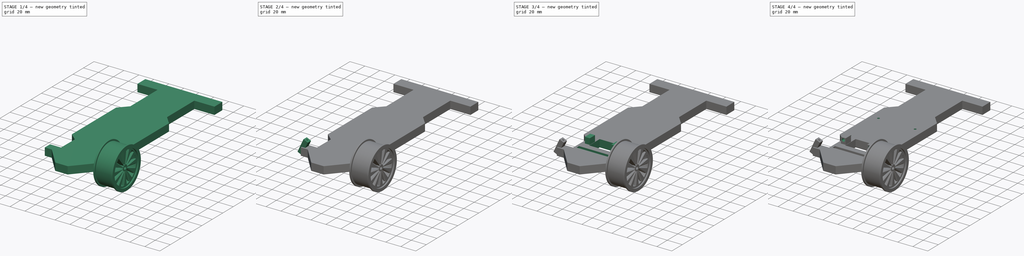
[diagram: build sequence overview — one tinted view per stage of 4, left to right]
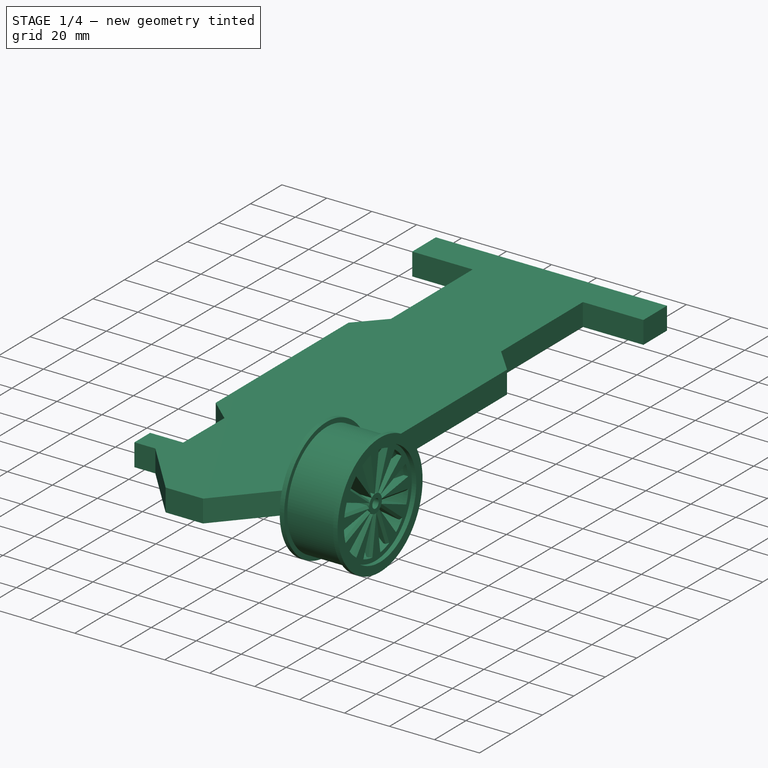
[diagram: stage 1 of 4 — iso view after this stage's code; geometry added in this stage tinted green]
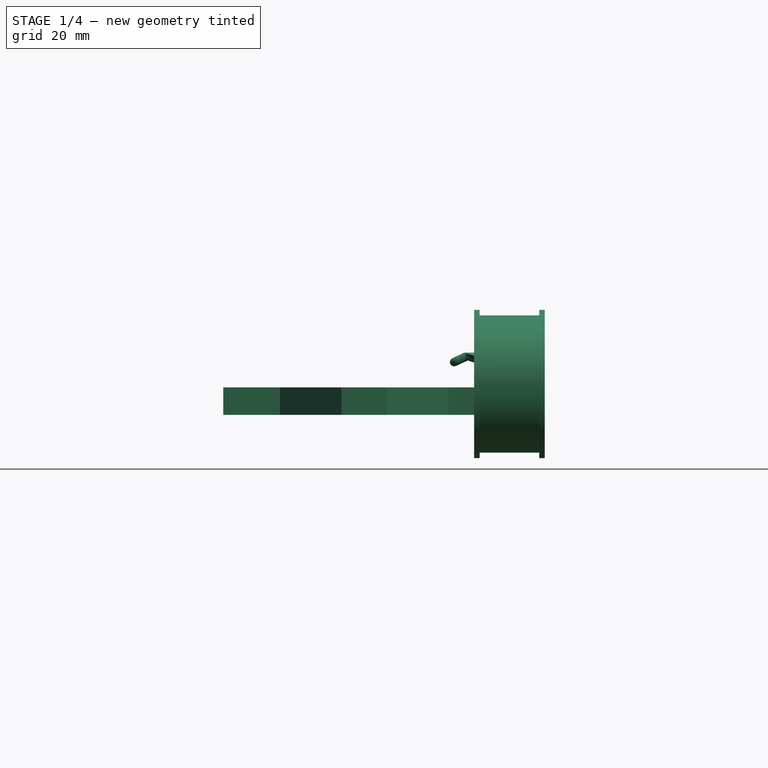
[diagram: stage 1 of 4 — front view after this stage's code; geometry added in this stage tinted green]
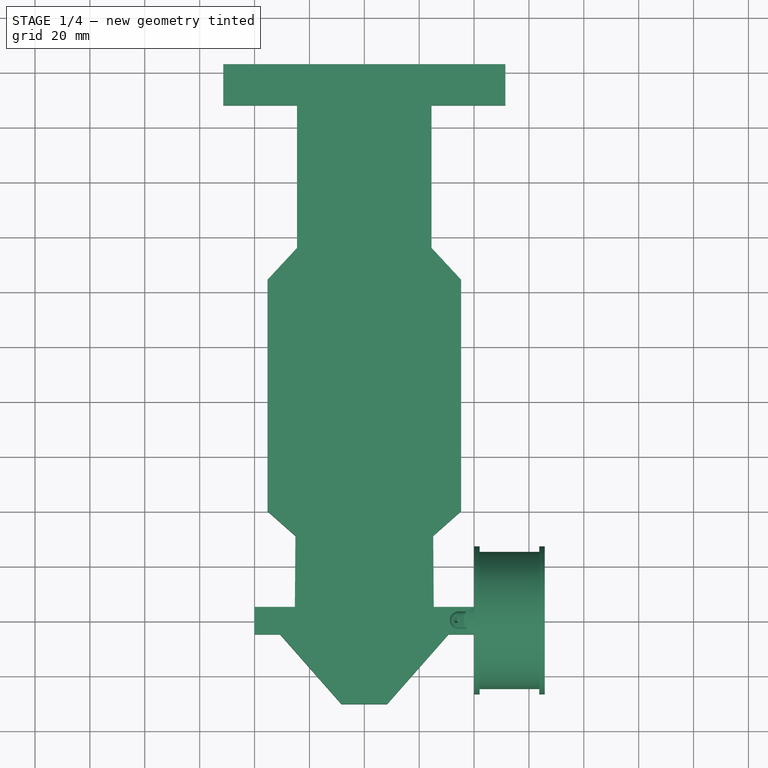
[diagram: stage 1 of 4 — top view after this stage's code; geometry added in this stage tinted green]
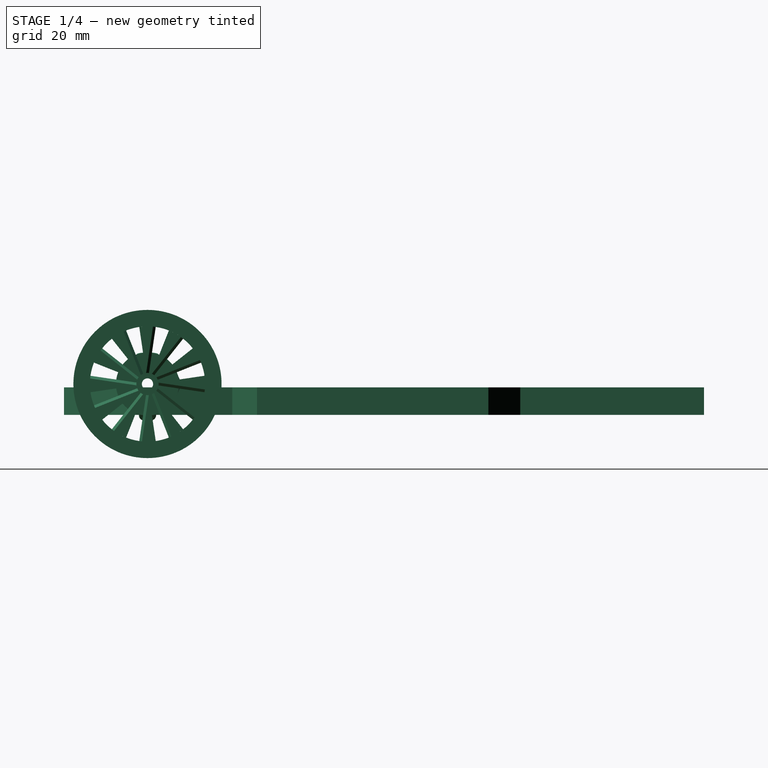
[diagram: stage 1 of 4 — right view after this stage's code; geometry added in this stage tinted green]
FCSTD DOCUMENT  (FreeCAD 1.0R39285 (Git))
Label: cat-car-body
License: All rights reserved
LicenseURL: http://en.wikipedia.org/wiki/All_rights_reserved
objects: Sketcher::SketchObject×9, PartDesign::Pocket×6, App::Link×5, PartDesign::Pad×3, App::VarSet×3, Spreadsheet::Sheet×2, PartDesign::CoordinateSystem×2, App::Part×1, PartDesign::Body×1, Part::Mirroring×1
note: 49 computed .brp shape members not serialized (recipe doc carries the construction recipe); baked Part::Feature solids carry a one-line shape summary decoded from their .brp
EXTERNAL_REF file=../steering-bracket-v2/steering-brackets-v2.FCStd obj=VarSet
EXTERNAL_REF file=../steering-bracket-v2/steering-brackets-v2.FCStd obj=Body
EXTERNAL_REF file=../wheels.FCStd obj=Part
EXTERNAL_REF file=../lib/28BYJ-48_Stepper.FCStd obj=Stepper_motor_28BYJ_48_5V
EXTERNAL_REF file=../lib/raspberry_pi_3_b.FCStd obj=Body

FEATURE [Sketcher::SketchObject] Sketch  label="FrameBaseSketch"
  ArcFitTolerance = 1e-06
  AttachmentSupport = -> [XY_Plane]
  FullyConstrained = false
  MakeInternals = false
  MapMode = 5
  expr: Constraints[22] = <<Dimensions>>.NoseWidth
  expr: Constraints[24] = <<Dimensions>>.NoseLengthX
  sketch-geometry (24):
    g0: LineSegment StartX=-40 StartY=-5 StartZ=0 EndX=-40 EndY=5 EndZ=0
    g1: LineSegment StartX=-40 StartY=5 StartZ=0 EndX=-25.3048 EndY=5 EndZ=0
    g2: LineSegment StartX=40 StartY=-5 StartZ=0 EndX=40 EndY=5 EndZ=0
    g3: LineSegment StartX=40 StartY=5 StartZ=0 EndX=25.3048 EndY=5 EndZ=0
    g4: LineSegment StartX=-25.3048 StartY=5 StartZ=0 EndX=-25.1092 EndY=30.8992 EndZ=0
    g5: LineSegment StartX=25.3048 StartY=5 StartZ=0 EndX=25.1092 EndY=30.8992 EndZ=0
    g6: LineSegment StartX=-25.1092 StartY=30.8992 StartZ=0 EndX=-35.2817 EndY=39.8988 EndZ=0
    g7: LineSegment StartX=25.1092 StartY=30.8992 StartZ=0 EndX=35.2817 EndY=39.8988 EndZ=0
    g8: LineSegment StartX=-35.2817 StartY=39.8988 StartZ=0 EndX=-35.2817 EndY=124.243 EndZ=0
    g9: LineSegment StartX=35.2817 StartY=39.8988 StartZ=0 EndX=35.2817 EndY=124.243 EndZ=0
    g10: LineSegment StartX=-35.2817 StartY=124.243 StartZ=0 EndX=-24.5062 EndY=135.839 EndZ=0
    g11: LineSegment StartX=35.2817 StartY=124.243 StartZ=0 EndX=24.5062 EndY=135.839 EndZ=0
    g12: LineSegment StartX=-24.5062 StartY=135.839 StartZ=0 EndX=-24.5062 EndY=187.812 EndZ=0
    g13: LineSegment StartX=24.5062 StartY=187.812 StartZ=0 EndX=24.5062 EndY=135.839 EndZ=0
    g14: LineSegment StartX=-40 StartY=-5 StartZ=0 EndX=-30.7049 EndY=-5 EndZ=0
    g15: LineSegment StartX=-30.7049 StartY=-5 StartZ=0 EndX=-8.31598 EndY=-30.4266 EndZ=0
    g16: LineSegment StartX=-8.31598 StartY=-30.4266 StartZ=0 EndX=8.31598 EndY=-30.4266 EndZ=0
    g17: LineSegment StartX=8.31598 StartY=-30.4266 StartZ=0 EndX=30.7049 EndY=-5 EndZ=0
    g18: LineSegment StartX=30.7049 StartY=-5 StartZ=0 EndX=40 EndY=-5 EndZ=0
    g19: LineSegment StartX=-24.5062 StartY=187.812 StartZ=0 EndX=-51.4242 EndY=187.812 EndZ=0
    g20: LineSegment StartX=-51.4242 StartY=187.812 StartZ=0 EndX=-51.4242 EndY=202.812 EndZ=0
    g21: LineSegment StartX=-51.4242 StartY=202.812 StartZ=0 EndX=51.4242 EndY=202.812 EndZ=0
    g22: LineSegment StartX=51.4242 StartY=202.812 StartZ=0 EndX=51.4242 EndY=187.812 EndZ=0
    g23: LineSegment StartX=51.4242 StartY=187.812 StartZ=0 EndX=24.5062 EndY=187.812 EndZ=0
  constraints (51):
    c: Symmetric(g0,g2,g-2)
    c: Coincident(g1,g0)
    c: Horizontal(g1)
    c: Coincident(g3,g2)
    c: Coincident(g4,g1)
    c: Coincident(g5,g3)
    c: Coincident(g6,g4)
    c: Coincident(g7,g5)
    c: Coincident(g8,g6)
    c: Vertical(g8)
    c: Coincident(g9,g7)
    c: Vertical(g9)
    c: Coincident(g10,g8)
    c: Coincident(g11,g9)
    c: Coincident(g12,g10)
    c: Vertical(g12)
    c: Vertical(g13)
    c: Coincident(g11,g13)
    c: Symmetric(g4,g5,g-2)
    c: Equal(g9,g8)
    c: Symmetric(g0,g0,g-1)
    c: Equal(g0,g2)
    c: DistanceY(g2,g2) = 10
    c: Vertical(g2)
    c: DistanceX(g0,g2) = 80
    c: Coincident(g0,g14)
    c: Coincident(g14,g15)
    c: Coincident(g15,g16)
    c: Coincident(g16,g17)
    c: Coincident(g17,g18)
    c: Coincident(g18,g2)
    c: Symmetric(g15,g16,g-2)
    c: Coincident(g12,g19)
    c: Horizontal(g19)
    c: Coincident(g19,g20)
    c: Vertical(g20)
    c: Coincident(g20,g21)
    c: Coincident(g21,g22)
    c: Vertical(g22)
    c: Coincident(g22,g23)
    c: Coincident(g23,g13)
    c: Horizontal(g23)
    c: Symmetric(g20,g21,g-2)
    c: Equal(g13,g12)
    c: Symmetric(g14,g17,g-2)
    c: Horizontal(g14)
    c: Symmetric(g1,g3,g-2)
    c: Equal(g22,g20)
    c: Equal(g19,g23)
    c: Symmetric(g8,g9,g-2)
    c: DistanceY(g22,g22) = 15
FEATURE [Spreadsheet::Sheet] Spreadsheet  label="Measurements"
  cells = A1='BoltHoleDiameterPrintingMargin; B1(BoltHoleDiameterPrintingMargin)==0.5 mm; A2='RaspberryPiLength; B2(RaspberryPiLength)==85 mm; A3='WheelDiameter; B3(WheelDiameter)==68 mm; A4='WheelTireWidth; B4(WheelTireWidth)==25 mm; A5='WheelShaftLength; B5(WheelShaftLength)==29 mm; A6='TieRodLength; B6(TieRodLength)==16 mm; A7='PinionGearDiameter; B7(PinionGearDiameter)==11.5 mm; A8='GearRackTieRodMountGap; B8(GearRackTieRodMountGap)==10 mm; A9='GearRackMountingBoltGap; B9(GearRackMountingBoltGap)==10 mm; A10='GearRackLength; B10(GearRackLength)==20 mm; A11='GearRackMountingBoltsOffset; B11(GearRackMountingBoltsOffset)==25.75 mm; A12='GearRackMountingSlotMargin; B12(GearRackMountingSlotMargin)==2.5 mm; A13='SteeringBracketRadius; B13(SteeringBracketRadius)==13.5 mm; A14='DistanceBetweenSteeringBrackets; B14(DistanceBetweenSteeringBrackets)==TieRodLength * 4 + GearRackTieRodMountGap; A15='SteeringBracketMountBoltSize; B15(SteeringBracketMountBoltSize)==2 mm; A16='SteeringBracketMountBoltHoleDiameter; B16(SteeringBracketMountBoltHoleDiameter)==SteeringBracketMountBoltSize + BoltHoleDiameterPrintingMargin; A17='SteeringBracketMountMargin; B17(SteeringBracketMountMargin)==10 mm; A18='SteeringBracketMountProtrusionZ; B18(SteeringBracketMountProtrusionZ)==10 mm; A19='NoseTipWidth; B19(NoseTipWidth)==DistanceBetweenSteeringBrackets + 2 * SteeringBracketMountMargin; A20='NoseTipLength; B20(NoseTipLength)==2 * SteeringBracketMountMargin + SteeringBracketMountBoltHoleDiameter; A21='NoseWidth; B21(NoseWidth)==(NoseTipWidth - (GearRackMountingBoltsOffset + GearRackMountingSlotMargin)) / 2; A22='NoseLength; B22(NoseLength)==WheelDiameter / 2; A23='NoseToBodyTransitionLength; B23(NoseToBodyTransitionLength)==10 mm; C23='TODO Refine this; A24='BodyWidth; A25='BodyLength; B25(BodyLength)==RaspberryPiLength; C25='TODO Refine this; A26='TailLength; B26(TailLength)==WheelDiameter + 4 mm; C26='TODO Refine this; A27='TailTipLength; B27(TailTipLength)==NoseTipLength; C27='TODO Rethink this
FEATURE [PartDesign::Pad] Pad  label="FramePad"
  Direction = (0,0,1)
  Length = 10
  Length2 = 10
  Profile = -> Sketch
  ReferenceAxis = -> Sketch [N_Axis]
  Suppressed = false
  Type = 0
  expr: Length = <<Dimensions>>.FrameDepth
FEATURE [PartDesign::Body] Body  label="FrameBody"
  AllowCompound = false
  Group = -> [Sketch,Pad,Sketch001,Pad001,Local_CS,Sketch002,Pocket,Local_CS001,Sketch003,Pocket001,Sketch004,Pocket002,Sketch005,Pocket003,Sketch006,Pad002,Sketch007,Pocket004,Sketch008,Pocket005]
  Origin = -> Origin
  Tip = -> Pocket005
FEATURE [Part::Mirroring] Part__Mirroring  label="WheelAndHubPassengerSide (Mirror #1)"
  Base = (0,0,0)
  MirrorPlane = -> YZ_Plane
  Normal = (1,-1e-16,1e-16)
  Source = -> Part
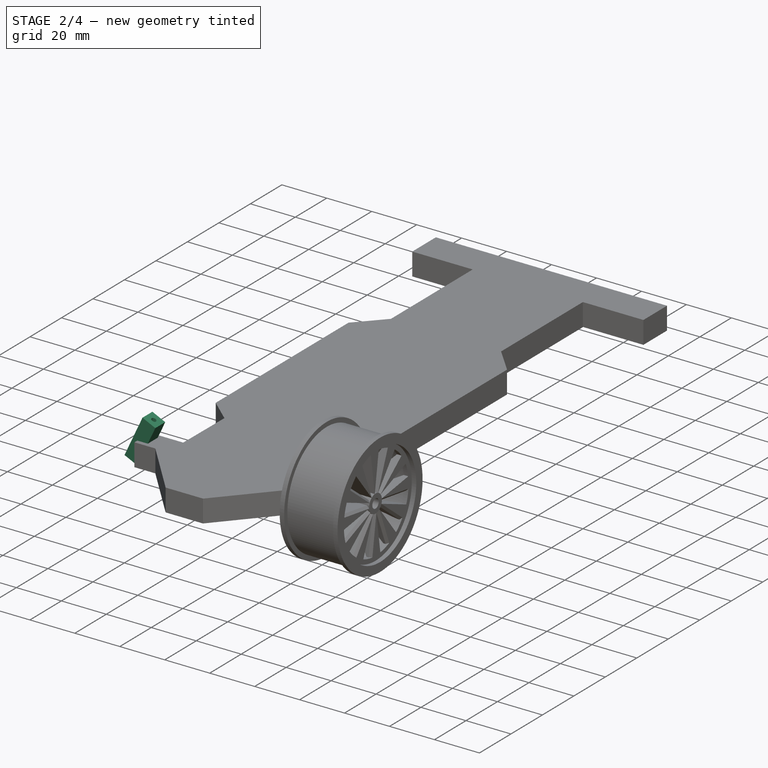
[diagram: stage 2 of 4 — iso view after this stage's code; geometry added in this stage tinted green]
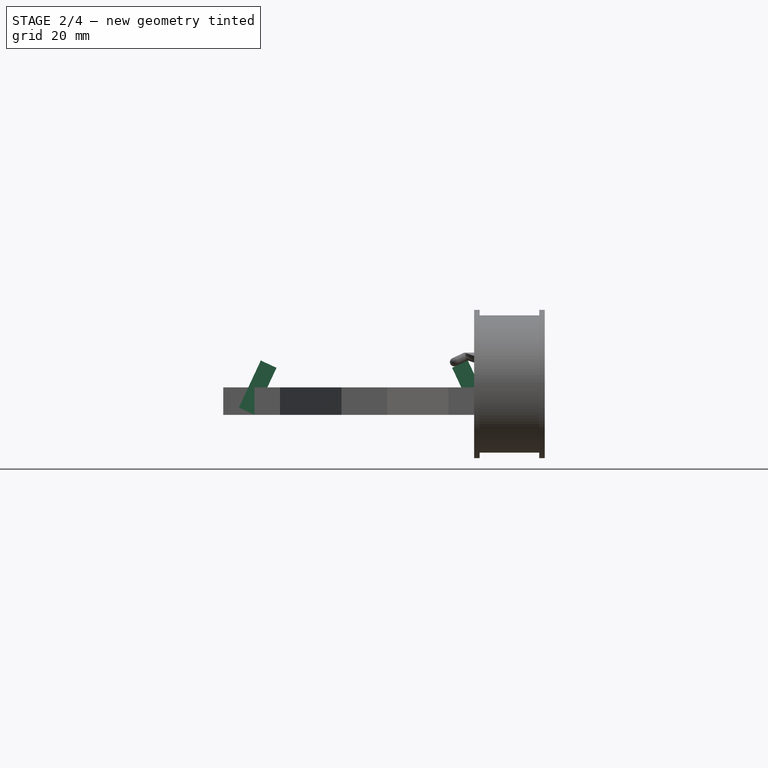
[diagram: stage 2 of 4 — front view after this stage's code; geometry added in this stage tinted green]
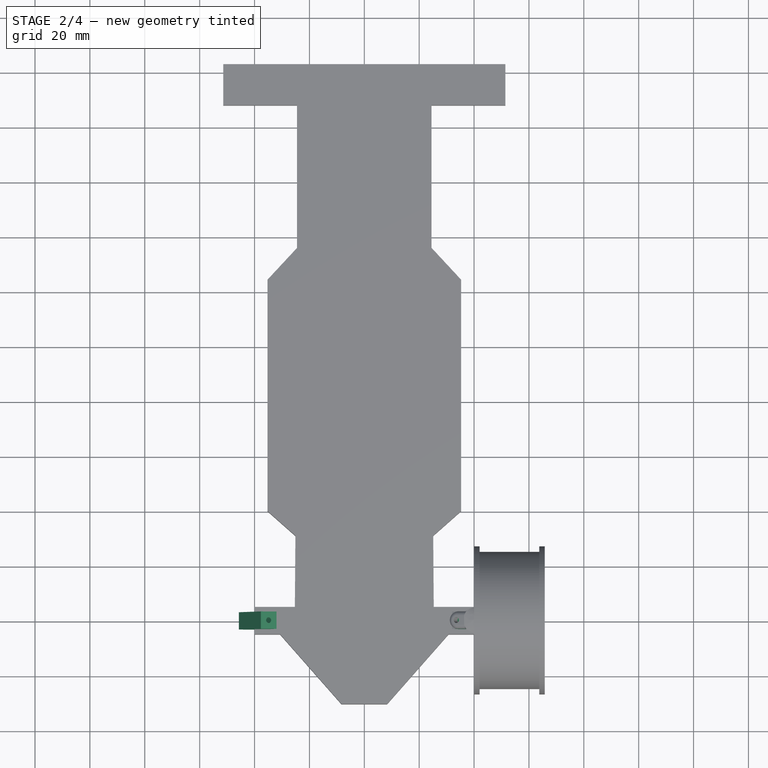
[diagram: stage 2 of 4 — top view after this stage's code; geometry added in this stage tinted green]
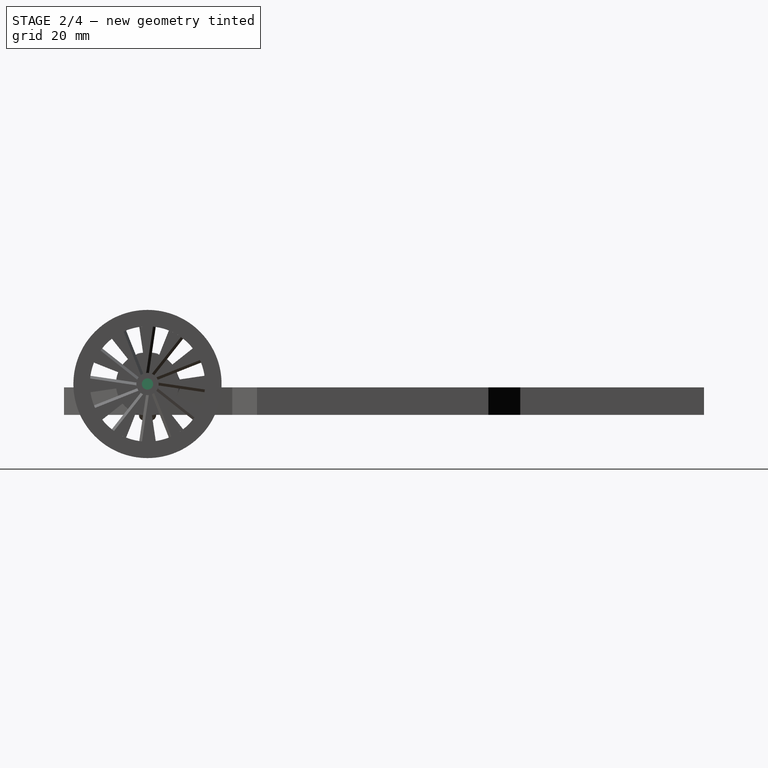
[diagram: stage 2 of 4 — right view after this stage's code; geometry added in this stage tinted green]
FEATURE [Spreadsheet::Sheet] Spreadsheet001  label="Motors"
  cells = A1='StepperCableBlockWidth; B1(StepperCableBlockWidth)==15 mm; A2='StepperCableBlockLength; B2(StepperCableBlockLength)==6 mm; A3='StepperBaseToMountHole; B3(StepperBaseToMountHole)==17 mm; A4='StepperMountHoleOffset; B4(StepperMountHoleOffset)==35 mm; A5='StepperMountHoleDiameter; B5(StepperMountHoleDiameter)==4 mm; A6='StepperMountThickness; B6(StepperMountThickness)==0.8 mm; A7='StepperBaseWidth; B7(StepperBaseWidth)==14.5 mm; A8='StepperBaseLength; B8(StepperBaseLength)==16.5 mm; A9='StepperBaseDepth; B9(StepperBaseDepth)==3 mm; A10='StepperBaseToShaft; B10(StepperBaseToShaft)==25 mm
FEATURE [App::VarSet] VarSet  label="Dimensions"
  FrameDepth = 10
  NoseLengthX = 80
  NoseWidth = 10
  PivotArmMountLength = 18.9176
  SteeringBracketBottomPivotArmOffsetX = 40
  SteeringRackSlotDepth = 2.5
  expr: NoseLengthX = SteeringBracketBottomPivotArmOffsetX * 2
  expr: PivotArmMountLength = 2 * <<SteeringBracketDimensions>>.PivotArmTipInnerEdgeRadius / sin(90 deg - <<SteeringBracketDimensions>>.SteeringArmInclinationAngle)
  expr: SteeringRackSlotDepth = FrameDepth / 4
FEATURE [App::VarSet] VarSet001  label="Parts"
FEATURE [Sketcher::SketchObject] Sketch001  label="SteeringAxleMountSketch"
  ArcFitTolerance = 1e-06
  AttachmentSupport = -> [XZ_Plane]
  FullyConstrained = true
  MakeInternals = false
  MapMode = 5
  Placement = pos=(0,0,0) rot=(1,0,0;1.5708rad)
  expr: Constraints[11] = <<Dimensions>>.SteeringBracketBottomPivotArmOffsetX
  expr: Constraints[22] = <<Dimensions>>.SteeringBracketBottomPivotArmOffsetX
  expr: Constraints[23] = 180 deg - <<SteeringBracketDimensions>>.SteeringArmInclinationAngle
  expr: Constraints[6] = 90 deg + <<SteeringBracketDimensions>>.SteeringArmInclinationAngle
  expr: Constraints[8] = <<Dimensions>>.PivotArmMountLength
  expr: Constraints[9] = <<SteeringBracketDimensions>>.PivotArmTipWidth
  sketch-geometry (8):
    g0: LineSegment StartX=-45.7097 StartY=2.6625 StartZ=0 EndX=-40 EndY=0 EndZ=0
    g1: LineSegment StartX=-40 StartY=0 StartZ=0 EndX=-32.0051 EndY=17.1451 EndZ=0
    g2: LineSegment StartX=-32.0051 StartY=17.1451 StartZ=0 EndX=-37.7148 EndY=19.8076 EndZ=0
    g3: LineSegment StartX=-37.7148 StartY=19.8076 StartZ=0 EndX=-45.7097 EndY=2.6625 EndZ=0
    g4: LineSegment StartX=40 StartY=0 StartZ=0 EndX=45.7097 EndY=2.6625 EndZ=0
    g5: LineSegment StartX=45.7097 StartY=2.6625 StartZ=0 EndX=37.7148 EndY=19.8076 EndZ=0
    g6: LineSegment StartX=37.7148 StartY=19.8076 StartZ=0 EndX=32.0051 EndY=17.1451 EndZ=0
    g7: LineSegment StartX=32.0051 StartY=17.1451 StartZ=0 EndX=40 EndY=0 EndZ=0
  constraints (24):
    c: Coincident(g0,g1)
    c: Coincident(g1,g2)
    c: Coincident(g2,g3)
    c: Coincident(g3,g0)
    c: Parallel(g1,g3)
    c: Parallel(g0,g2)
    c: Angle(g1,g-1) = 2.00713
    c: Angle(g0,g3) = 1.5708
    c: Distance(g1,g1) = 18.9176
    c: Distance(g0,g0) = 6.3
    c: PointOnObject(g0,g-1)
    c: DistanceX(g0,g-1) = 40
    c: PointOnObject(g4,g-1)
    c: Coincident(g4,g5)
    c: Coincident(g5,g6)
    c: Coincident(g6,g7)
    c: Coincident(g7,g4)
    c: Parallel(g6,g4)
    c: Parallel(g7,g5)
    c: Equal(g1,g7)
    c: Equal(g2,g6)
    c: Angle(g5,g4) = 1.5708
    c: DistanceX(g-1,g4) = 40
    c: Angle(g4,g-1) = 2.70526
FEATURE [App::Link] Link002  label="SteeringBracketDimensions"
  LinkedObject = -> <external ../steering-bracket-v2/steering-brackets-v2.FCStd>#VarSet
FEATURE [PartDesign::Pad] Pad001  label="SteeringAxleMountPad"
  BaseFeature = -> Pad
  Direction = (0,-1,2e-16)
  Length = 6.3
  Length2 = 10
  Midplane = true
  Profile = -> Sketch001
  ReferenceAxis = -> Sketch001 [N_Axis]
  Refine = true
  Suppressed = false
  Type = 0
  expr: Length = <<SteeringBracketDimensions>>.PivotArmTipWidth
FEATURE [PartDesign::CoordinateSystem] Local_CS  label="SteeringAxleMountHolePassengerSideLCS"
  AttacherType = Attacher::AttachEngine3D
  AttachmentSupport = -> [Pad001]
  MapMode = 6
  Placement = pos=(-32.0051,3.15,17.1451) rot=(0.21644,0,0.976296;3.14159rad)
FEATURE [Sketcher::SketchObject] Sketch002  label="SteeringAxleMountHolePassengerSideSketch"
  ArcFitTolerance = 1e-06
  AttachmentSupport = -> [Local_CS]
  FullyConstrained = true
  MakeInternals = false
  MapMode = 2
  Placement = pos=(-32.0051,3.15,17.1451) rot=(0.21644,0,0.976296;3.14159rad)
  expr: Constraints[1] = <<SteeringBracketDimensions>>.PivotArmTipWidth / 2
  expr: Constraints[2] = <<SteeringBracketDimensions>>.PivotArmTipWidth / 2
  sketch-geometry (1):
    g0: Circle CenterX=3.15 CenterY=3.15 CenterZ=0 NormalX=0 NormalY=0 NormalZ=1 AngleXU=0 Radius=1.005
  constraints (3):
    c: Diameter(g0) = 2.01
    c: DistanceY(g-1,g0) = 3.15
    c: DistanceX(g-1,g0) = 3.15
FEATURE [PartDesign::Pocket] Pocket  label="SteeringAxleMountHolePassengerSide"
  BaseFeature = -> Pad001
  Direction = (-0.422618,0,-0.906308)
  Length = 18.9176
  Length2 = 5
  Profile = -> Sketch002
  ReferenceAxis = -> Sketch002 [N_Axis]
  Refine = true
  Suppressed = false
  Type = 0
  expr: Length = <<Dimensions>>.PivotArmMountLength
FEATURE [PartDesign::CoordinateSystem] Local_CS001  label="SteeringAxleMountHoleDriverSideLCS"
  AttacherType = Attacher::AttachEngine3D
  AttachmentSupport = -> [Pocket]
  MapMode = 6
  Placement = pos=(37.7148,3.15,19.8076) rot=(-0.21644,0,0.976296;3.14159rad)
FEATURE [Sketcher::SketchObject] Sketch003  label="SteeringAxleMountHoleDriverSideSketch"
  ArcFitTolerance = 1e-06
  AttachmentSupport = -> [Local_CS001]
  FullyConstrained = true
  MakeInternals = false
  MapMode = 2
  Placement = pos=(37.7148,3.15,19.8076) rot=(-0.21644,0,0.976296;3.14159rad)
  expr: Constraints[1] = <<SteeringBracketDimensions>>.PivotArmTipWidth / 2
  expr: Constraints[2] = <<SteeringBracketDimensions>>.PivotArmTipWidth / 2
  sketch-geometry (1):
    g0: Circle CenterX=3.15 CenterY=3.15 CenterZ=0 NormalX=0 NormalY=0 NormalZ=1 AngleXU=0 Radius=1.005
  constraints (3):
    c: Diameter(g0) = 2.01
    c: DistanceY(g-1,g0) = 3.15
    c: DistanceX(g-1,g0) = 3.15
FEATURE [PartDesign::Pocket] Pocket001  label="SteeringAxleMountHoleDriverSide"
  BaseFeature = -> Pocket
  Direction = (0.422618,0,-0.906308)
  Length = 18.9176
  Length2 = 5
  Profile = -> Sketch003
  ReferenceAxis = -> Sketch003 [N_Axis]
  Refine = true
  Suppressed = false
  Type = 0
  expr: Length = <<Dimensions>>.PivotArmMountLength
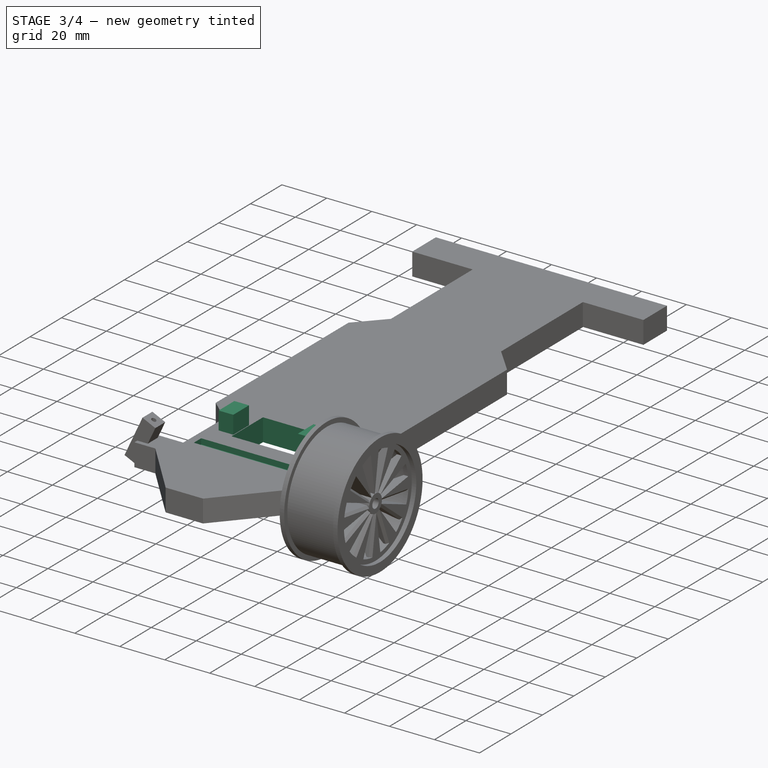
[diagram: stage 3 of 4 — iso view after this stage's code; geometry added in this stage tinted green]
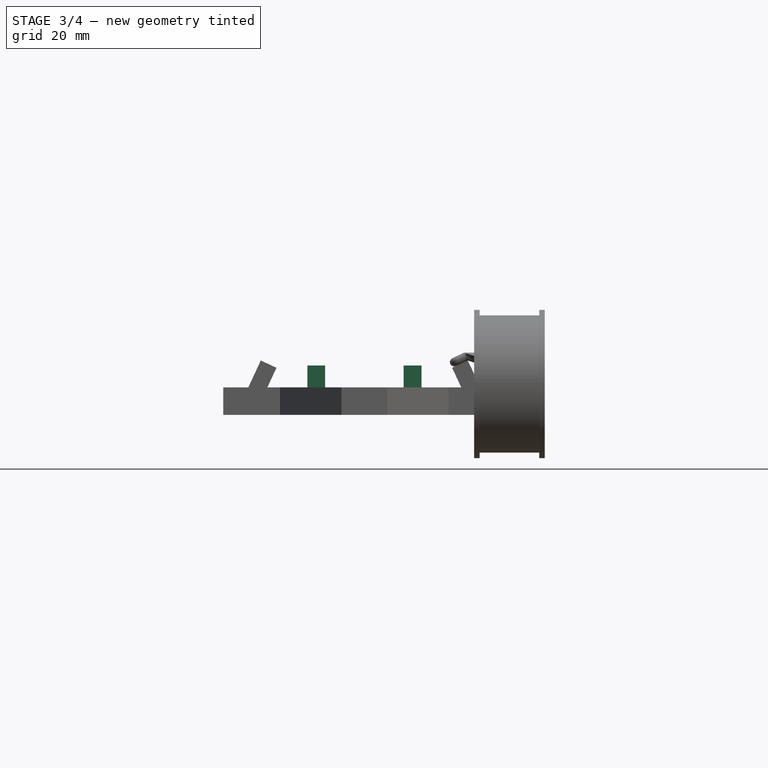
[diagram: stage 3 of 4 — front view after this stage's code; geometry added in this stage tinted green]
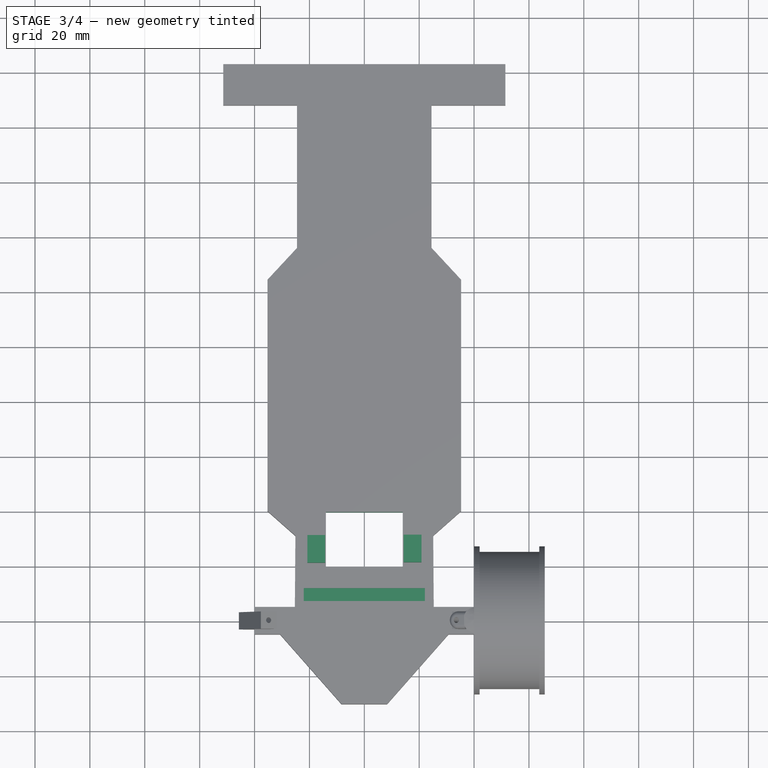
[diagram: stage 3 of 4 — top view after this stage's code; geometry added in this stage tinted green]
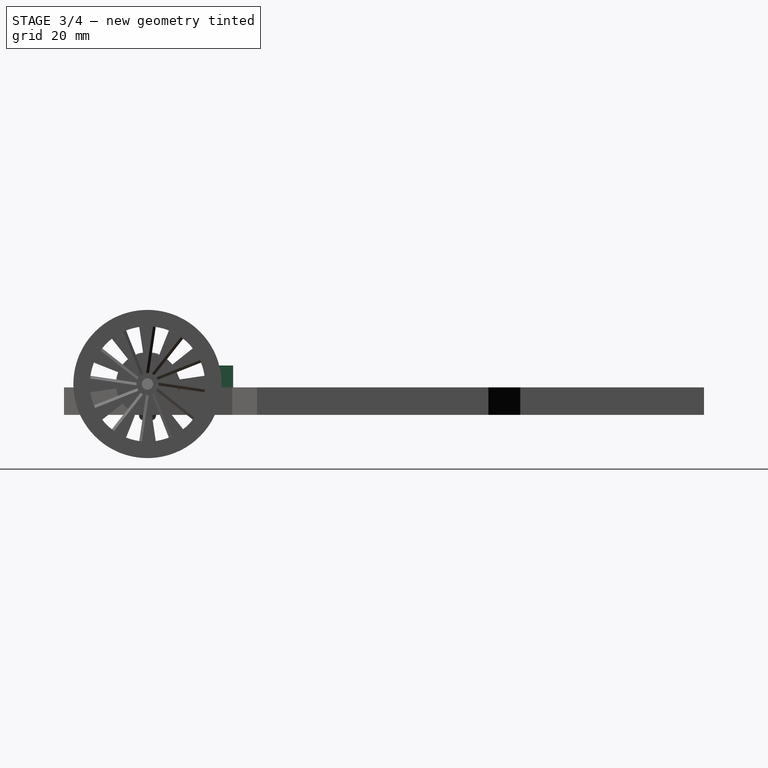
[diagram: stage 3 of 4 — right view after this stage's code; geometry added in this stage tinted green]
FEATURE [Sketcher::SketchObject] Sketch004  label="SteeringRackSlotSketch"
  ArcFitTolerance = 1e-06
  AttachmentSupport = -> [Pocket001]
  FullyConstrained = false
  MakeInternals = false
  MapMode = 5
  Placement = pos=(0,0,10) rot=(0,0,1;0rad)
  sketch-geometry (5):
    g0: LineSegment StartX=-22.0861 StartY=11.8167 StartZ=0 EndX=-22.0861 EndY=7.13188 EndZ=0
    g1: LineSegment StartX=-22.0861 StartY=7.13188 StartZ=0 EndX=22.0861 EndY=7.13188 EndZ=0
    g2: LineSegment StartX=22.0861 StartY=7.13188 StartZ=0 EndX=22.0861 EndY=11.8167 EndZ=0
    g3: LineSegment StartX=22.0861 StartY=11.8167 StartZ=0 EndX=-22.0861 EndY=11.8167 EndZ=0
    g4: GeomPoint [constr] X=0 Y=9.47427 Z=0
  constraints (10):
    c: Coincident(g0,g1)
    c: Coincident(g1,g2)
    c: Coincident(g2,g3)
    c: Coincident(g3,g0)
    c: Vertical(g0)
    c: Vertical(g2)
    c: Horizontal(g1)
    c: Horizontal(g3)
    c: Symmetric(g2,g0,g4)
    c: PointOnObject(g4,g-2)
FEATURE [PartDesign::Pocket] Pocket002  label="SteeringRackSlot"
  BaseFeature = -> Pocket001
  Direction = (0,0,-1)
  Length = 2.5
  Length2 = 5
  Profile = -> Sketch004
  ReferenceAxis = -> Sketch004 [N_Axis]
  Refine = true
  Suppressed = false
  Type = 0
  expr: Length = <<Dimensions>>.SteeringRackSlotDepth
FEATURE [App::Link] Link  label="SteeringBracket"
  LinkPlacement = pos=(0,0,0) rot=(0.57735,0.57735,0.57735;2.0944rad)
  LinkedObject = -> <external ../steering-bracket-v2/steering-brackets-v2.FCStd>#Body
  Placement = pos=(0,0,0) rot=(0.57735,0.57735,0.57735;2.0944rad)
FEATURE [App::Link] Link003  label="Wheel"
  LinkPlacement = pos=(0,0,0) rot=(0,0,-1;1.5708rad)
  LinkedObject = -> <external ../wheels.FCStd>#Part
  Placement = pos=(0,0,0) rot=(0,0,-1;1.5708rad)
FEATURE [App::Part] Part  label="WheelAndHubPassengerSide"
  Group = -> [Link003,Link]
  Origin = -> Origin001
  Placement = pos=(-52.9037,0,11.2351) rot=(0,0,1;0rad)
  expr: .Placement.Base.x = -1 * <<Refs>>.WheelPositionX
  expr: .Placement.Base.z = <<Refs>>.WheelPositionY
FEATURE [App::VarSet] VarSet002  label="Refs"
  WheelPositionX = 52.9037
  WheelPositionY = 11.2351
  expr: WheelPositionX = <<Dimensions>>.SteeringBracketBottomPivotArmOffsetX + <<SteeringBracketDimensions>>.HubThickness + <<SteeringBracketDimensions>>.LowerPivotArmLengthZ + <<SteeringBracketDimensions>>.PivotArmTipCalculatedWidth / 2 + <<SteeringBracketDimensions>>.PivotArmTipOuterCornerOffset
  expr: WheelPositionY = <<SteeringBracketDimensions>>.PivotArmTipOuterCornerRadius
FEATURE [App::Link] Link004  label="28BYJ-48_Stepper"
  LinkPlacement = pos=(0,20,15) rot=(0.57735,0.57735,0.57735;2.0944rad)
  LinkedObject = -> <external ../lib/28BYJ-48_Stepper.FCStd>#Stepper_motor_28BYJ_48_5V
  Placement = pos=(0,20,15) rot=(0.57735,0.57735,0.57735;2.0944rad)
FEATURE [Sketcher::SketchObject] Sketch005  label="SteeringMotorSlotSketch"
  ArcFitTolerance = 1e-06
  AttachmentSupport = -> [Pocket002]
  FullyConstrained = false
  MakeInternals = false
  MapMode = 5
  Placement = pos=(0,0,10) rot=(0,0,1;0rad)
  sketch-geometry (5):
    g0: LineSegment StartX=-14 StartY=19.5535 StartZ=0 EndX=14 EndY=19.5535 EndZ=0
    g1: LineSegment StartX=14 StartY=19.5535 StartZ=0 EndX=14 EndY=39.5535 EndZ=0
    g2: LineSegment StartX=14 StartY=39.5535 StartZ=0 EndX=-14 EndY=39.5535 EndZ=0
    g3: LineSegment StartX=-14 StartY=39.5535 StartZ=0 EndX=-14 EndY=19.5535 EndZ=0
    g4: GeomPoint [constr] X=0 Y=29.5535 Z=0
  constraints (12):
    c: Coincident(g0,g1)
    c: Coincident(g1,g2)
    c: Coincident(g2,g3)
    c: Coincident(g3,g0)
    c: Horizontal(g0)
    c: Horizontal(g2)
    c: Vertical(g1)
    c: Vertical(g3)
    c: Symmetric(g2,g0,g4)
    c: PointOnObject(g4,g-2)
    c: DistanceY(g3,g3) = 20
    c: DistanceX(g0,g0) = 28
FEATURE [PartDesign::Pocket] Pocket003  label="SteeringMotorSlot"
  BaseFeature = -> Pocket002
  Direction = (0,0,-1)
  Length = 10
  Length2 = 5
  Profile = -> Sketch005
  ReferenceAxis = -> Sketch005 [N_Axis]
  Refine = true
  Suppressed = false
  Type = 0
  expr: Length = <<Dimensions>>.FrameDepth
FEATURE [Sketcher::SketchObject] Sketch006  label="SteeringMotorMountSketch"
  ArcFitTolerance = 1e-06
  AttachmentSupport = -> [Pocket003]
  FullyConstrained = false
  MakeInternals = false
  MapMode = 5
  Placement = pos=(0,0,10) rot=(0,0,1;0rad)
  sketch-geometry (8):
    g0: LineSegment StartX=-20.7578 StartY=21.0229 StartZ=0 EndX=-14.2578 EndY=21.0229 EndZ=0
    g1: LineSegment StartX=-14.2578 StartY=21.0229 StartZ=0 EndX=-14.2578 EndY=31.0229 EndZ=0
    g2: LineSegment StartX=-14.2578 StartY=31.0229 StartZ=0 EndX=-20.7578 EndY=31.0229 EndZ=0
    g3: LineSegment StartX=-20.7578 StartY=31.0229 StartZ=0 EndX=-20.7578 EndY=21.0229 EndZ=0
    g4: LineSegment StartX=14.3484 StartY=21.1907 StartZ=0 EndX=20.8484 EndY=21.1907 EndZ=0
    g5: LineSegment StartX=20.8484 StartY=21.1907 StartZ=0 EndX=20.8484 EndY=31.1907 EndZ=0
    g6: LineSegment StartX=20.8484 StartY=31.1907 StartZ=0 EndX=14.3484 EndY=31.1907 EndZ=0
    g7: LineSegment StartX=14.3484 StartY=31.1907 StartZ=0 EndX=14.3484 EndY=21.1907 EndZ=0
  constraints (20):
    c: Coincident(g0,g1)
    c: Coincident(g1,g2)
    c: Coincident(g2,g3)
    c: Coincident(g3,g0)
    c: Horizontal(g0)
    c: Horizontal(g2)
    c: Vertical(g1)
    c: Vertical(g3)
    c: Coincident(g4,g5)
    c: Coincident(g5,g6)
    c: Coincident(g6,g7)
    c: Coincident(g7,g4)
    c: Horizontal(g4)
    c: Horizontal(g6)
    c: Vertical(g5)
    c: Vertical(g7)
    c: Equal(g1,g5)
    c: Equal(g0,g4)
    c: DistanceY(g3,g3) = 10
    c: DistanceX(g0,g0) = 6.5
FEATURE [PartDesign::Pad] Pad002  label="SteeringMotorMountPad"
  BaseFeature = -> Pocket003
  Direction = (0,0,1)
  Length = 8
  Length2 = 10
  Profile = -> Sketch006
  ReferenceAxis = -> Sketch006 [N_Axis]
  Refine = true
  Suppressed = false
  Type = 0
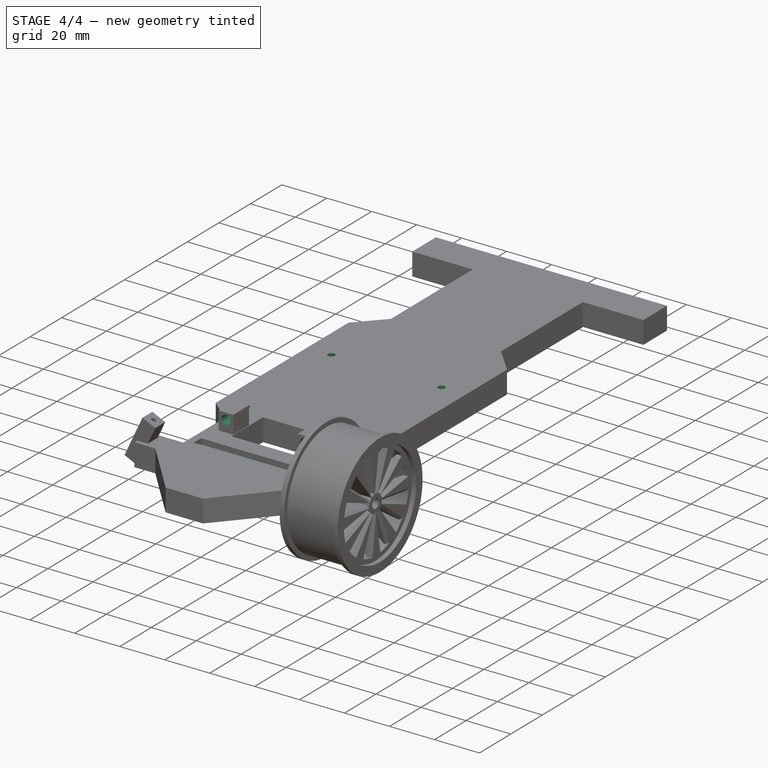
[diagram: stage 4 of 4 — iso view after this stage's code; geometry added in this stage tinted green]
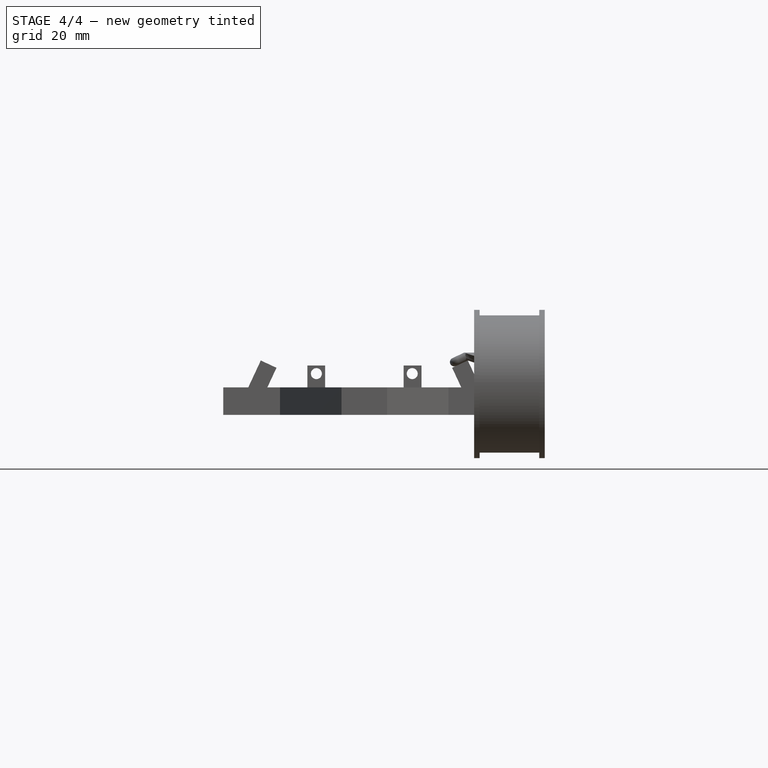
[diagram: stage 4 of 4 — front view after this stage's code; geometry added in this stage tinted green]
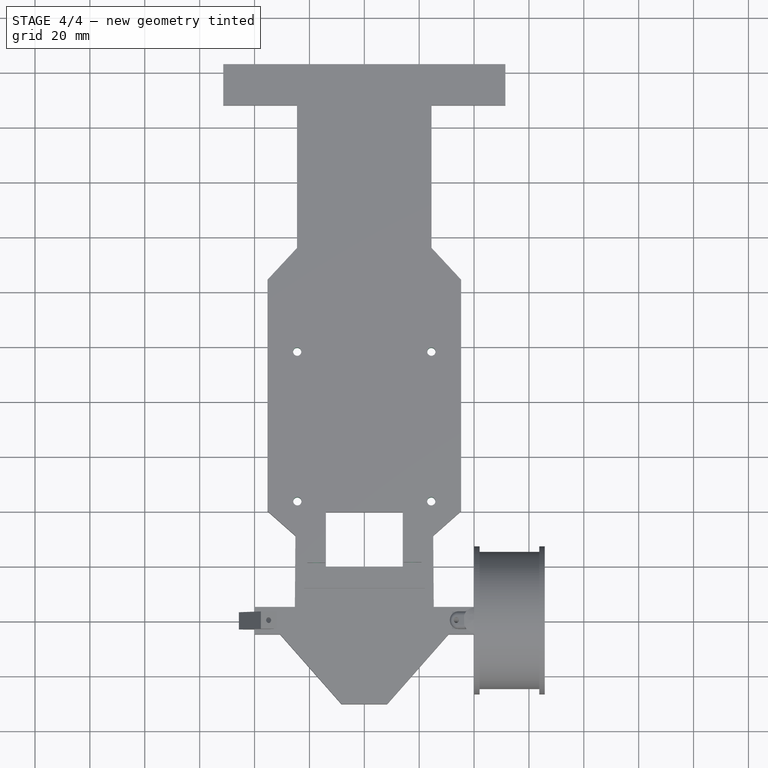
[diagram: stage 4 of 4 — top view after this stage's code; geometry added in this stage tinted green]
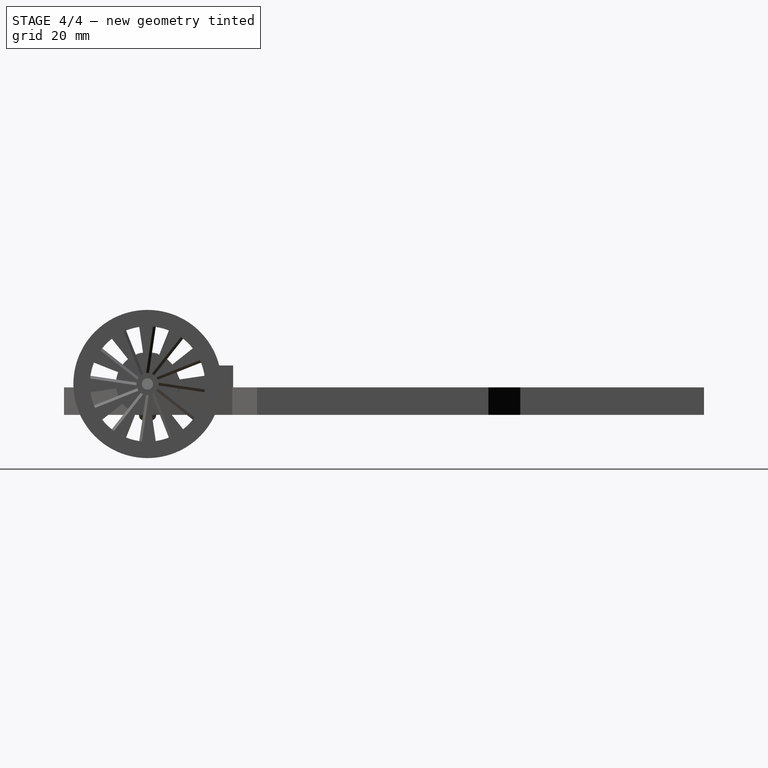
[diagram: stage 4 of 4 — right view after this stage's code; geometry added in this stage tinted green]
FEATURE [Sketcher::SketchObject] Sketch007  label="SteeringMotorMountBoltHoleSketch"
  ArcFitTolerance = 1e-06
  AttachmentSupport = -> [Pad002]
  FullyConstrained = false
  MakeInternals = false
  MapMode = 5
  Placement = pos=(0,21.0229,0) rot=(1,0,0;1.5708rad)
  sketch-geometry (2):
    g0: Circle CenterX=-17.4621 CenterY=15.0134 CenterZ=0 NormalX=0 NormalY=0 NormalZ=1 AngleXU=0 Radius=2
    g1: Circle CenterX=17.4621 CenterY=15.0134 CenterZ=0 NormalX=0 NormalY=0 NormalZ=1 AngleXU=0 Radius=2
  constraints (3):
    c: Diameter(g0) = 4
    c: Equal(g0,g1)
    c: Symmetric(g0,g1,g-2)
FEATURE [PartDesign::Pocket] Pocket004  label="SteeringMotorMountBoltHole"
  BaseFeature = -> Pad002
  Direction = (0,1,-2e-16)
  Length = 20
  Length2 = 5
  Profile = -> Sketch007
  ReferenceAxis = -> Sketch007 [N_Axis]
  Refine = true
  Suppressed = false
  Type = 0
FEATURE [App::Link] Link005  label="RaspberryPi"
  LinkPlacement = pos=(28,40,10) rot=(0,0,1;1.5708rad)
  LinkedObject = -> <external ../lib/raspberry_pi_3_b.FCStd>#Body
  Placement = pos=(28,40,10) rot=(0,0,1;1.5708rad)
FEATURE [Sketcher::SketchObject] Sketch008  label="McuMountBoltHoleSketch"
  ArcFitTolerance = 1e-06
  AttachmentSupport = -> [Pocket004]
  FullyConstrained = false
  MakeInternals = false
  MapMode = 5
  Placement = pos=(0,0,10) rot=(0,0,1;0rad)
  sketch-geometry (4):
    g0: Circle CenterX=24.4461 CenterY=97.9958 CenterZ=0 NormalX=0 NormalY=0 NormalZ=1 AngleXU=0 Radius=1.5
    g1: Circle CenterX=-24.4461 CenterY=97.9958 CenterZ=0 NormalX=0 NormalY=0 NormalZ=1 AngleXU=0 Radius=1.5
    g2: Circle CenterX=-24.3951 CenterY=43.4709 CenterZ=0 NormalX=0 NormalY=0 NormalZ=1 AngleXU=0 Radius=1.5
    g3: Circle CenterX=24.3951 CenterY=43.4709 CenterZ=0 NormalX=0 NormalY=0 NormalZ=1 AngleXU=0 Radius=1.5
  constraints (6):
    c: Diameter(g2) = 3
    c: Equal(g2,g3)
    c: Equal(g3,g0)
    c: Equal(g0,g1)
    c: Symmetric(g1,g0,g-2)
    c: Symmetric(g2,g3,g-2)
FEATURE [PartDesign::Pocket] Pocket005  label="McuMountBoltHole"
  BaseFeature = -> Pocket004
  Direction = (0,0,-1)
  Length = 10
  Length2 = 5
  Profile = -> Sketch008
  ReferenceAxis = -> Sketch008 [N_Axis]
  Refine = true
  Suppressed = false
  Type = 0
  expr: Length = <<Dimensions>>.FrameDepth
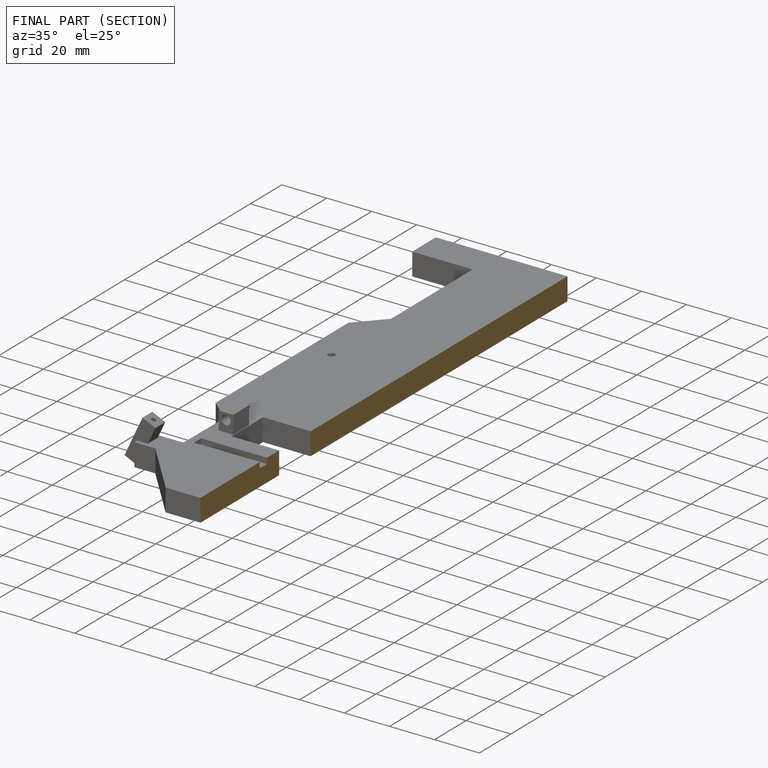
[diagram: finished part — half-section view (interior)]
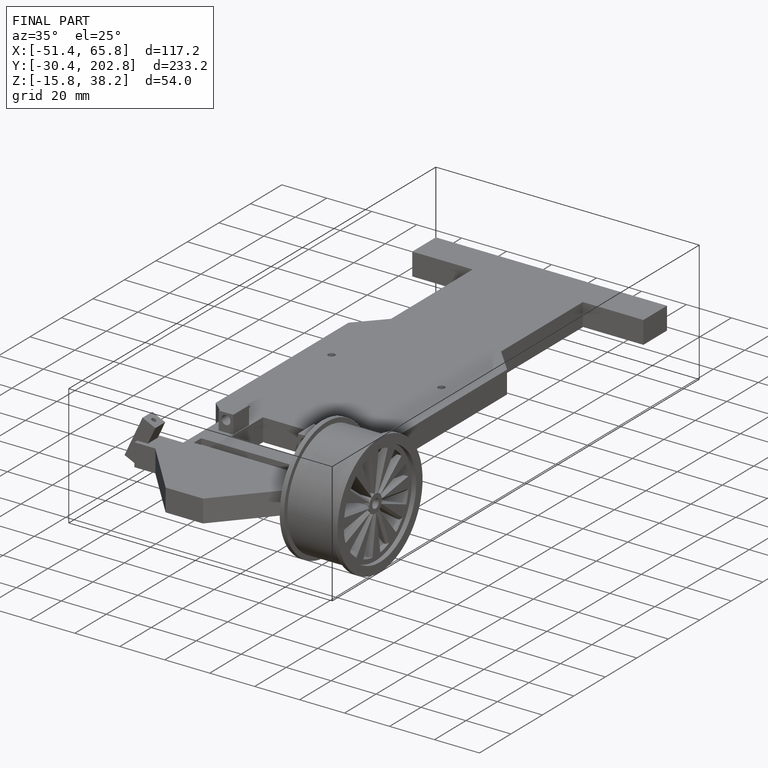
[diagram: finished part — iso view with bounding-box wireframe]
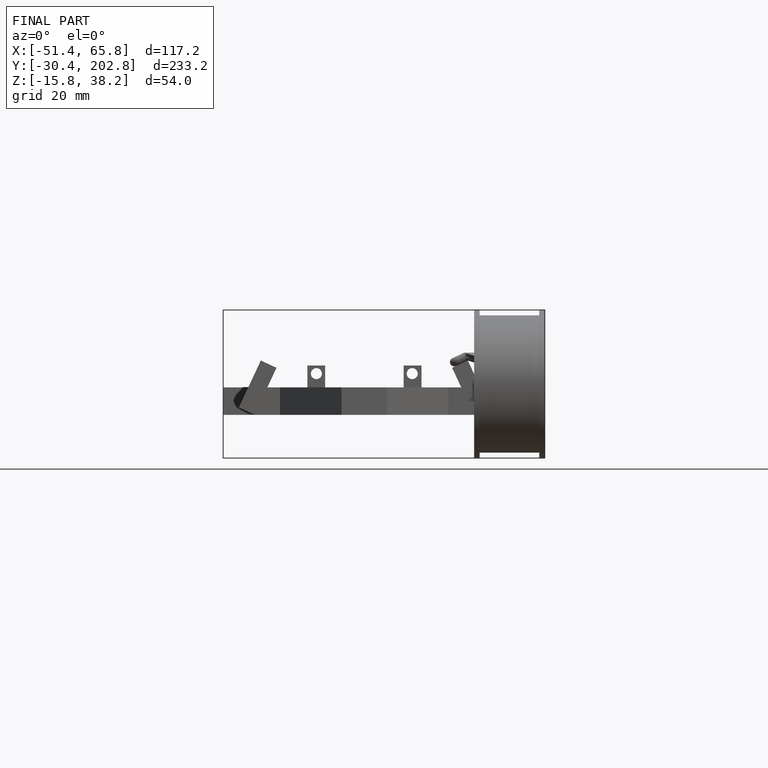
[diagram: finished part — front view with bounding-box wireframe]
